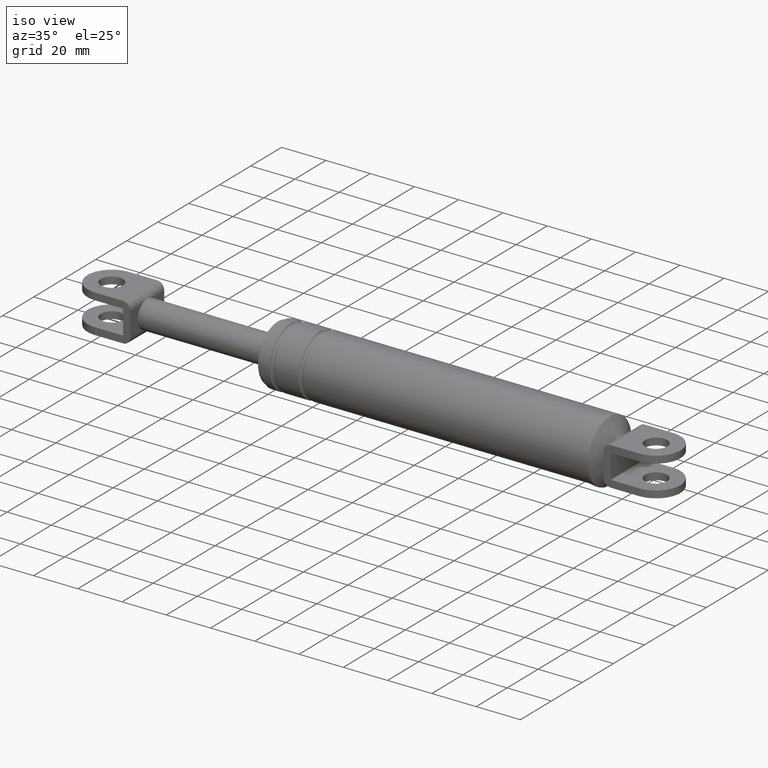
[diagram: clean part render]
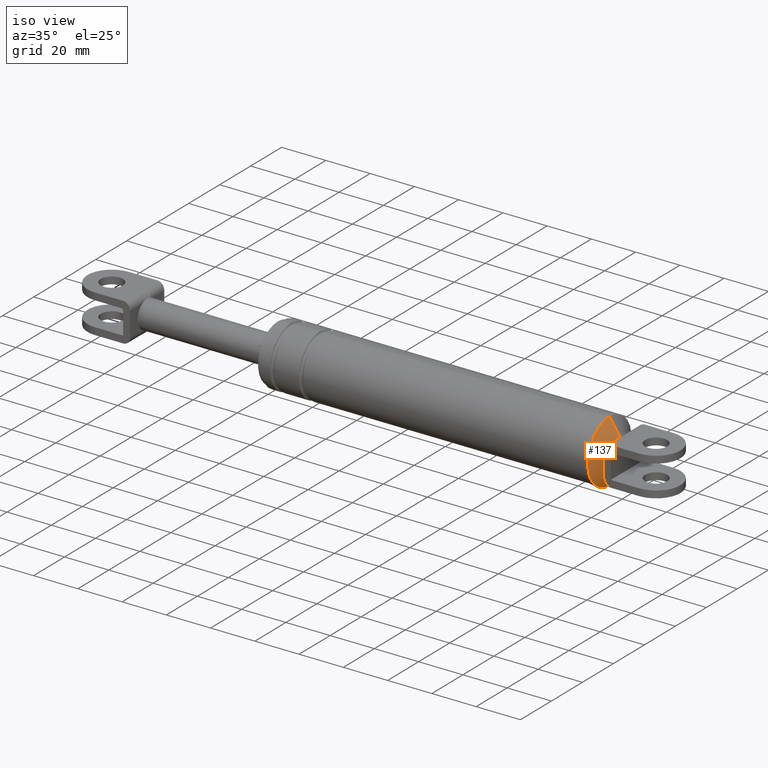
[diagram: same view with one face highlighted and labeled with its STEP entity id]
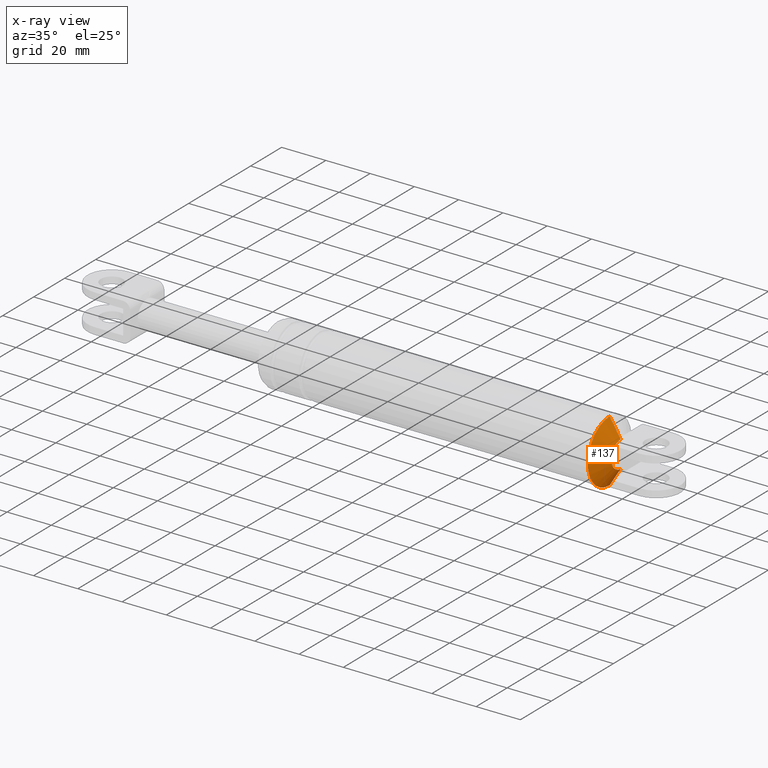
[diagram: x-ray of the same camera — body ghosted, the highlighted face saturated]
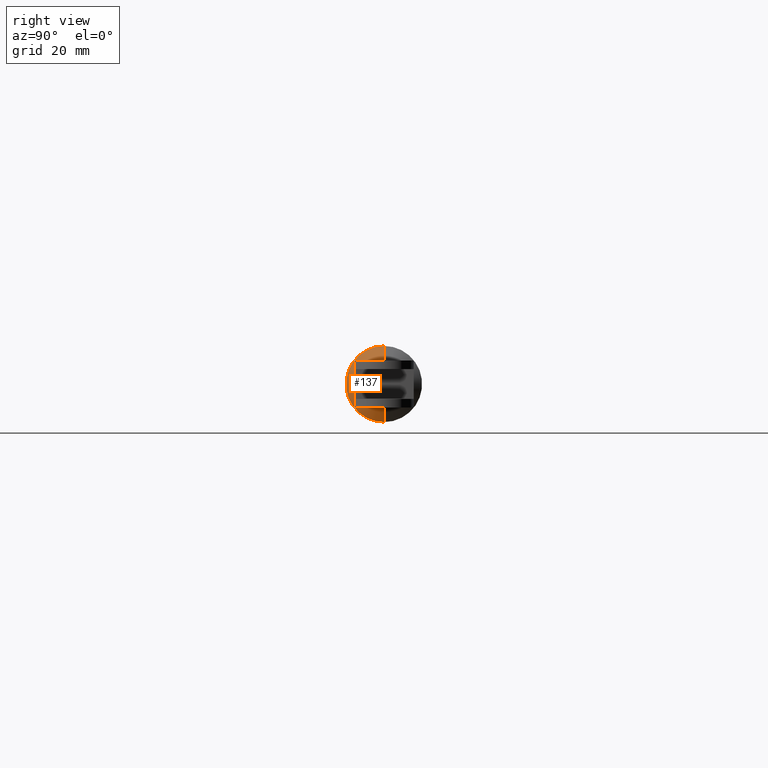
[diagram: same view with one face highlighted and labeled with its STEP entity id]
A machine part, iso view. The second image highlights one B-rep face of the part: STEP entity #137.
The next image is the same camera in x-ray: the body ghosted, the highlighted face saturated — about 0% of this face is hidden behind the body in this view.
A second angle (right view) of the same face is appended — the face is thin or edge-on in the first view.
In plain terms, the highlighted face is a freeform B-spline surface patch.
Its self-contained STEP definition (entity closure, byte-faithful):
#137=ADVANCED_FACE('',(#433),#432,.T.);
#432=( BOUNDED_SURFACE() B_SPLINE_SURFACE( 2,1,((#1371,#1372),(#1373,#1374),(#1375,#1376),(#1377,#1378),(#1379,#1380)), .UNSPECIFIED.,.F.,.F.,.F.) B_SPLINE_SURFACE_WITH_KNOTS((3,2,3),(2,2),(0.00000000000E+000,5.00000000000E-001,1.00000000000E+000),(0.00000000000E+000,1.00000000000E+000), .UNSPECIFIED. ) GEOMETRIC_REPRESENTATION_ITEM() RATIONAL_B_SPLINE_SURFACE(((1.00000000000E+000,1.00000000000E+000),(7.07106781187E-001,7.07106781187E-001),(1.00000000000E+000,1.00000000000E+000),(7.07106781187E-001,7.07106781187E-001),(1.00000000000E+000,1.00000000000E+000))) REPRESENTATION_ITEM('') SURFACE() );
#433=FACE_OUTER_BOUND('',#1381,.T.);
#1371=CARTESIAN_POINT('',(3.23046726228E+002,5.28394570207E-014,1.19820542859E+002));
#1372=CARTESIAN_POINT('',(3.10721955159E+002,-7.32598823575E-015,9.98801316299E+001));
#1373=CARTESIAN_POINT('',(3.23046726228E+002,5.28394570207E-014,1.19820542859E+002));
#1374=CARTESIAN_POINT('',(3.10721955159E+002,-1.99404112295E+001,9.98801316299E+001));
#1375=CARTESIAN_POINT('',(3.23046726228E+002,5.28394570207E-014,1.19820542859E+002));
#1376=CARTESIAN_POINT('',(3.10721955159E+002,-1.99404112295E+001,1.19820542859E+002));
#1377=CARTESIAN_POINT('',(3.23046726228E+002,5.28394570207E-014,1.19820542859E+002));
#1378=CARTESIAN_POINT('',(3.10721955159E+002,-1.99404112295E+001,1.39760954089E+002));
#1379=CARTESIAN_POINT('',(3.23046726228E+002,5.28394570207E-014,1.19820542859E+002));
#1380=CARTESIAN_POINT('',(3.10721955159E+002,1.10562906198E-013,1.39760954089E+002));
#1381=EDGE_LOOP('',(#2095,#2096,#2097,#2098,#2099,#2100));
#2095=ORIENTED_EDGE('',*,*,#2282,.T.);
#2096=ORIENTED_EDGE('',*,*,#2337,.T.);
#2097=ORIENTED_EDGE('',*,*,#2331,.T.);
#2098=ORIENTED_EDGE('',*,*,#2350,.T.);
#2099=ORIENTED_EDGE('',*,*,#2352,.F.);
#2100=ORIENTED_EDGE('',*,*,#2351,.F.);
#2282=EDGE_CURVE('',#2445,#2438,#2446,.T.);
#2331=EDGE_CURVE('',#2745,#2772,#2779,.T.);
#2337=EDGE_CURVE('',#2438,#2745,#2815,.T.);
#2350=EDGE_CURVE('',#2772,#2893,#2901,.T.);
#2351=EDGE_CURVE('',#2445,#2894,#2907,.T.);
#2352=EDGE_CURVE('',#2894,#2893,#2913,.T.);
#2438=VERTEX_POINT('',#3472);
#2445=VERTEX_POINT('',#3477);
#2446=CIRCLE('',#3481,6.01043341957E+000);
#2745=VERTEX_POINT('',#3672);
#2772=VERTEX_POINT('',#3696);
#2779=CIRCLE('',#3704,6.01043341956E+000);
#2815=CIRCLE('',#3726,6.01043341956E+000);
#2893=VERTEX_POINT('',#3769);
#2894=VERTEX_POINT('',#3770);
#2901=(BOUNDED_CURVE() B_SPLINE_CURVE(1,(#3775,#3776),.UNSPECIFIED.,.F.,.F.) B_SPLINE_CURVE_WITH_KNOTS((2,2),(3.01419733466E-001,7.07106780557E-001),.UNSPECIFIED.) CURVE() GEOMETRIC_REPRESENTATION_ITEM() RATIONAL_B_SPLINE_CURVE((1.00000000000E+000,1.00000000000E+000)) REPRESENTATION_ITEM('') );
#2907=(BOUNDED_CURVE() B_SPLINE_CURVE(1,(#3777,#3778),.UNSPECIFIED.,.F.,.F.) B_SPLINE_CURVE_WITH_KNOTS((2,2),(3.01419709613E-001,7.07106774312E-001),.UNSPECIFIED.) CURVE() GEOMETRIC_REPRESENTATION_ITEM() RATIONAL_B_SPLINE_CURVE((7.50000000000E-001,7.50000000000E-001)) REPRESENTATION_ITEM('') );
#2913=CIRCLE('',#3782,1.41000000000E+001);
#3472=CARTESIAN_POINT('',(3.19331797029E+002,-2.42391066068E+000,1.14320545859E+002));
#3477=CARTESIAN_POINT('',(3.19331797029E+002,-2.78723033769E-008,1.13810109440E+002));
#3478=CARTESIAN_POINT('',(3.19331797029E+002,1.33670852165E-013,1.19820542859E+002));
#3479=DIRECTION('',(-1.00000000000E+000,-1.37805784948E-014,-6.07325624431E-015));
#3480=DIRECTION('',(-0.00000000000E+000,-4.03283838531E-001,9.15074939871E-001));
#3481=AXIS2_PLACEMENT_3D('',#3478,#3479,#3480);
#3672=CARTESIAN_POINT('',(3.19331797029E+002,-2.42391066068E+000,1.25320539859E+002));
#3696=CARTESIAN_POINT('',(3.19331797029E+002,9.77421812874E-014,1.25830976279E+002));
#3701=CARTESIAN_POINT('',(3.19331797029E+002,1.14330767076E-012,1.19820542859E+002));
#3702=DIRECTION('',(-1.00000000000E+000,1.64054505876E-014,7.23006695685E-015));
#3703=DIRECTION('',(-0.00000000000E+000,4.03283838532E-001,-9.15074939870E-001));
#3704=AXIS2_PLACEMENT_3D('',#3701,#3702,#3703);
#3723=CARTESIAN_POINT('',(3.19331797029E+002,1.86517468137E-014,1.19820542859E+002));
#3724=DIRECTION('',(-1.00000000000E+000,-3.96097561189E-015,1.74564659078E-015));
#3725=DIRECTION('',(-1.97215226305E-031,4.03283838532E-001,9.15074939870E-001));
#3726=AXIS2_PLACEMENT_3D('',#3723,#3724,#3725);
#3769=CARTESIAN_POINT('',(3.14331797029E+002,1.98359847066E-013,1.33920542859E+002));
#3770=CARTESIAN_POINT('',(3.14331797029E+002,8.18073616148E-015,1.05720542859E+002));
#3775=CARTESIAN_POINT('',(3.19331797017E+002,7.17105266820E-014,1.25830976297E+002));
#3776=CARTESIAN_POINT('',(3.14331797036E+002,9.71094892461E-014,1.33920542847E+002));
#3777=CARTESIAN_POINT('',(3.19331797311E+002,3.33430768114E-014,1.13810109897E+002));
#3778=CARTESIAN_POINT('',(3.14331797113E+002,7.10249264546E-015,1.05720542996E+002));
#3779=CARTESIAN_POINT('',(3.14331797029E+002,1.05681027793E-013,1.19820542859E+002));
#3780=DIRECTION('',(-1.00000000000E+000,-1.42533216107E-015,-1.08575660700E-029));
#3781=DIRECTION('',(2.02551882619E-029,-6.59328572567E-015,-1.00000000000E+000));
#3782=AXIS2_PLACEMENT_3D('',#3779,#3780,#3781);